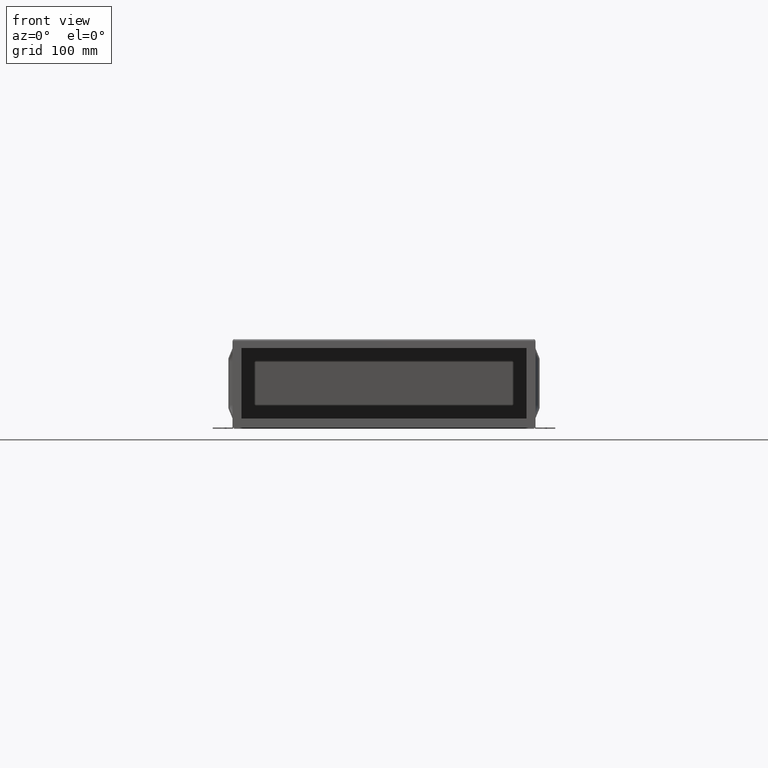
[diagram: clean part render]
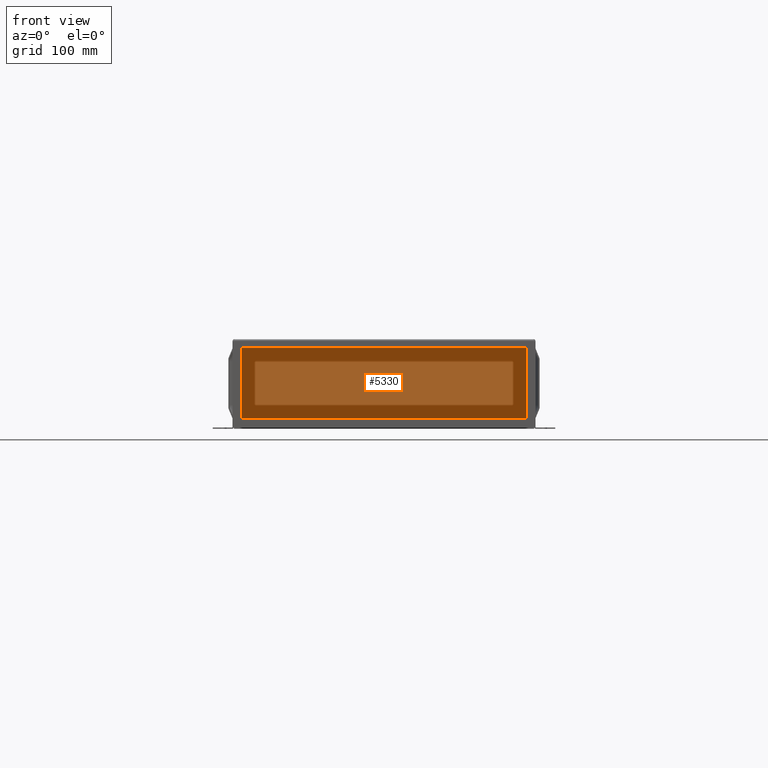
[diagram: same view with one face highlighted and labeled with its STEP entity id]
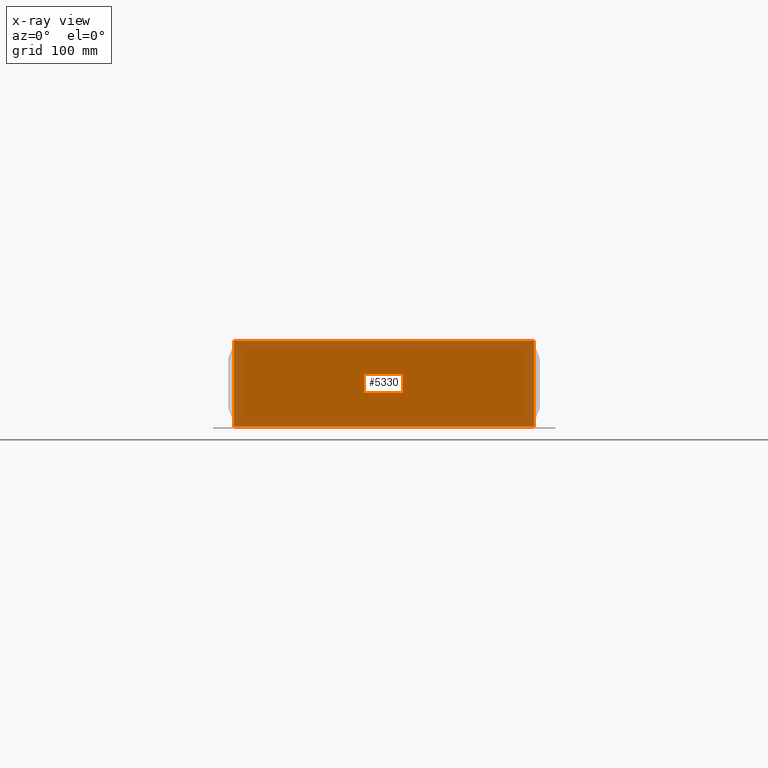
[diagram: x-ray of the same camera — body ghosted, the highlighted face saturated]
A machine part, front view. The second image highlights one B-rep face of the part: STEP entity #5330.
The next image is the same camera in x-ray: the body ghosted, the highlighted face saturated — about 22% of this face is hidden behind the body in this view.
In plain terms, the highlighted planar face has unit normal (0, 0.9848, 0.1736).
Its self-contained STEP definition (entity closure, byte-faithful):
#189=PLANE('',#5659);
#343=FACE_OUTER_BOUND('',#654,.T.);
#654=EDGE_LOOP('',(#3522,#3523,#3524,#3525));
#1318=LINE('',#7916,#1776);
#1319=LINE('',#7919,#1777);
#1320=LINE('',#7921,#1778);
#1321=LINE('',#7922,#1779);
#1776=VECTOR('',#6330,17.0068357864377);
#1777=VECTOR('',#6333,4.93848122911106);
#1778=VECTOR('',#6334,17.0068357864376);
#1779=VECTOR('',#6335,4.93848122911106);
#2223=VERTEX_POINT('',#7901);
#2224=VERTEX_POINT('',#7905);
#2226=VERTEX_POINT('',#7918);
#2227=VERTEX_POINT('',#7920);
#2711=EDGE_CURVE('',#2223,#2224,#1318,.T.);
#2712=EDGE_CURVE('',#2224,#2226,#1319,.T.);
#2713=EDGE_CURVE('',#2227,#2226,#1320,.T.);
#2714=EDGE_CURVE('',#2227,#2223,#1321,.T.);
#3522=ORIENTED_EDGE('',*,*,#2711,.T.);
#3523=ORIENTED_EDGE('',*,*,#2712,.T.);
#3524=ORIENTED_EDGE('',*,*,#2713,.F.);
#3525=ORIENTED_EDGE('',*,*,#2714,.T.);
#5330=ADVANCED_FACE('',(#343),#189,.F.);
#5659=AXIS2_PLACEMENT_3D('',#7917,#6331,#6332);
#6330=DIRECTION('',(1.,-3.12693167942962E-18,1.63339337372098E-17));
#6331=DIRECTION('center_axis',(2.43068733442389E-19,0.984807753012203,0.173648177666961));
#6332=DIRECTION('ref_axis',(0.,-0.173648177666967,0.984807753012202));
#6333=DIRECTION('',(-5.05990957163949E-15,-0.173648177666961,0.984807753012203));
#6334=DIRECTION('',(1.,0.,0.));
#6335=DIRECTION('',(1.12003206663895E-16,0.173648177666962,-0.984807753012202));
#7901=CARTESIAN_POINT('',(0.074707106781175,35.0240182719779,-4.88927809698171));
#7905=CARTESIAN_POINT('',(17.0815428932188,35.0240182719778,-4.88927809698171));
#7916=CARTESIAN_POINT('',(13.8397307231842,35.0240182719778,-4.88927809698171));
#7917=CARTESIAN_POINT('Origin',(10.5979185531496,34.5984726677825,-2.47588904849085));
#7918=CARTESIAN_POINT('',(17.0815428932188,34.1664600061002,-0.0258234944479044));
#7919=CARTESIAN_POINT('',(17.0815428932188,34.1664600061002,-0.0258234944479059));
#7920=CARTESIAN_POINT('',(0.0747071067811759,34.1664600061002,-0.0258234944479044));
#7921=CARTESIAN_POINT('',(91.5952453675771,34.1664600061002,-0.025823494447905));
#7922=CARTESIAN_POINT('',(0.0747071067811745,34.1664600061002,-0.025823494447905));